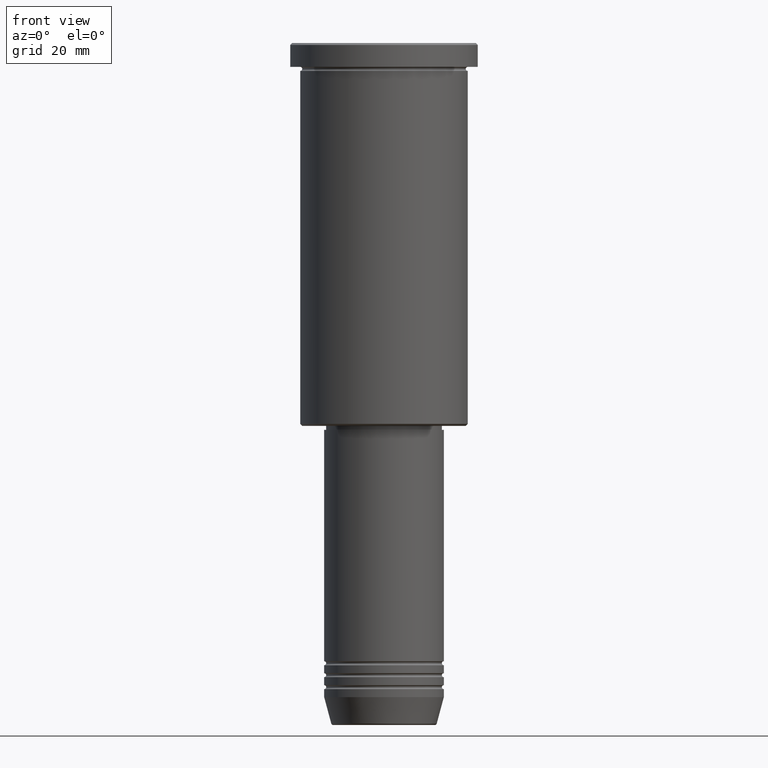
[diagram: clean part render]
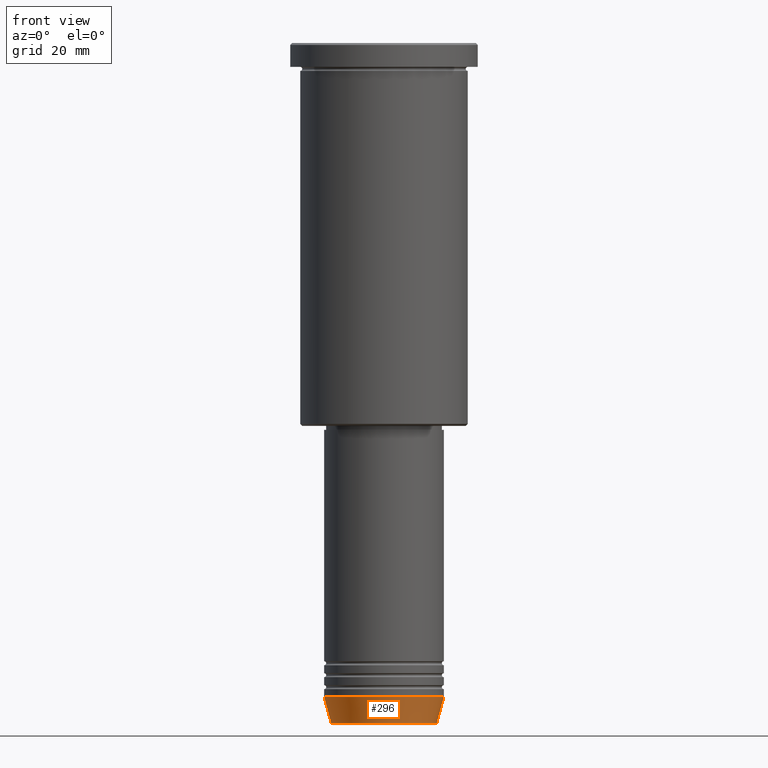
[diagram: same view with one face highlighted and labeled with its STEP entity id]
A machine part, front view. The second image highlights one B-rep face of the part: STEP entity #296.
In plain terms, the highlighted conical surface has half-angle 15 deg.
Its self-contained STEP definition (entity closure, byte-faithful):
#116 = DIRECTION ( 'NONE',  ( 1.000000000000000000, 0.000000000000000000, 0.000000000000000000 ) ) ;
#134 = VECTOR ( 'NONE', #356, 1000.000000000000000 ) ;
#170 = EDGE_LOOP ( 'NONE', ( #526, #1066, #317, #219 ) ) ;
#191 = LINE ( 'NONE', #1102, #134 ) ;
#219 = ORIENTED_EDGE ( 'NONE', *, *, #1075, .F. ) ;
#241 = VERTEX_POINT ( 'NONE', #747 ) ;
#273 = CARTESIAN_POINT ( 'NONE',  ( 15.00000000000000000, 0.000000000000000000, -164.0000000000000000 ) ) ;
#296 = ADVANCED_FACE ( 'NONE', ( #374 ), #1128, .T. ) ;
#303 = CARTESIAN_POINT ( 'NONE',  ( 13.22365507213719305, 0.000000000000000000, -170.6294095225512422 ) ) ;
#317 = ORIENTED_EDGE ( 'NONE', *, *, #982, .T. ) ;
#340 = AXIS2_PLACEMENT_3D ( 'NONE', #1039, #582, #116 ) ;
#346 = DIRECTION ( 'NONE',  ( 1.000000000000000000, 0.000000000000000000, 0.000000000000000000 ) ) ;
#356 = DIRECTION ( 'NONE',  ( -0.2588190451025213501, 3.169619151431772337E-17, 0.9659258262890680902 ) ) ;
#374 = FACE_OUTER_BOUND ( 'NONE', #170, .T. ) ;
#526 = ORIENTED_EDGE ( 'NONE', *, *, #1022, .F. ) ;
#539 = CARTESIAN_POINT ( 'NONE',  ( 15.00000000000000000, 0.000000000000000000, -164.0000000000000000 ) ) ;
#582 = DIRECTION ( 'NONE',  ( -0.000000000000000000, -0.000000000000000000, 1.000000000000000000 ) ) ;
#598 = EDGE_CURVE ( 'NONE', #241, #672, #711, .T. ) ;
#618 = VERTEX_POINT ( 'NONE', #539 ) ;
#637 = DIRECTION ( 'NONE',  ( 0.2588190451025213501, 0.000000000000000000, 0.9659258262890680902 ) ) ;
#643 = CARTESIAN_POINT ( 'NONE',  ( -15.00000000000000000, 1.836970198721029589E-15, -164.0000000000000000 ) ) ;
#666 = CARTESIAN_POINT ( 'NONE',  ( 0.000000000000000000, 0.000000000000000000, -164.0000000000000000 ) ) ;
#672 = VERTEX_POINT ( 'NONE', #303 ) ;
#673 = VECTOR ( 'NONE', #637, 1000.000000000000000 ) ;
#694 = CIRCLE ( 'NONE', #1093, 15.00000000000000000 ) ;
#711 = CIRCLE ( 'NONE', #1147, 13.22365507213719305 ) ;
#747 = CARTESIAN_POINT ( 'NONE',  ( -13.22365507213719305, 1.728200442216588583E-15, -170.6294095225512422 ) ) ;
#810 = DIRECTION ( 'NONE',  ( -0.000000000000000000, -0.000000000000000000, 1.000000000000000000 ) ) ;
#936 = DIRECTION ( 'NONE',  ( 1.000000000000000000, 0.000000000000000000, 0.000000000000000000 ) ) ;
#982 = EDGE_CURVE ( 'NONE', #672, #618, #1016, .T. ) ;
#998 = CARTESIAN_POINT ( 'NONE',  ( 0.000000000000000000, 0.000000000000000000, -170.6294095225512422 ) ) ;
#1016 = LINE ( 'NONE', #273, #673 ) ;
#1022 = EDGE_CURVE ( 'NONE', #241, #1050, #191, .T. ) ;
#1039 = CARTESIAN_POINT ( 'NONE',  ( 0.000000000000000000, 0.000000000000000000, -164.0000000000000000 ) ) ;
#1050 = VERTEX_POINT ( 'NONE', #643 ) ;
#1066 = ORIENTED_EDGE ( 'NONE', *, *, #598, .T. ) ;
#1075 = EDGE_CURVE ( 'NONE', #1050, #618, #694, .T. ) ;
#1093 = AXIS2_PLACEMENT_3D ( 'NONE', #666, #1131, #936 ) ;
#1102 = CARTESIAN_POINT ( 'NONE',  ( -15.00000000000000000, 1.836970198721029589E-15, -164.0000000000000000 ) ) ;
#1128 = CONICAL_SURFACE ( 'NONE', #340, 15.00000000000000000, 0.2617993877991500740 ) ;
#1131 = DIRECTION ( 'NONE',  ( -0.000000000000000000, -0.000000000000000000, 1.000000000000000000 ) ) ;
#1147 = AXIS2_PLACEMENT_3D ( 'NONE', #998, #810, #346 ) ;